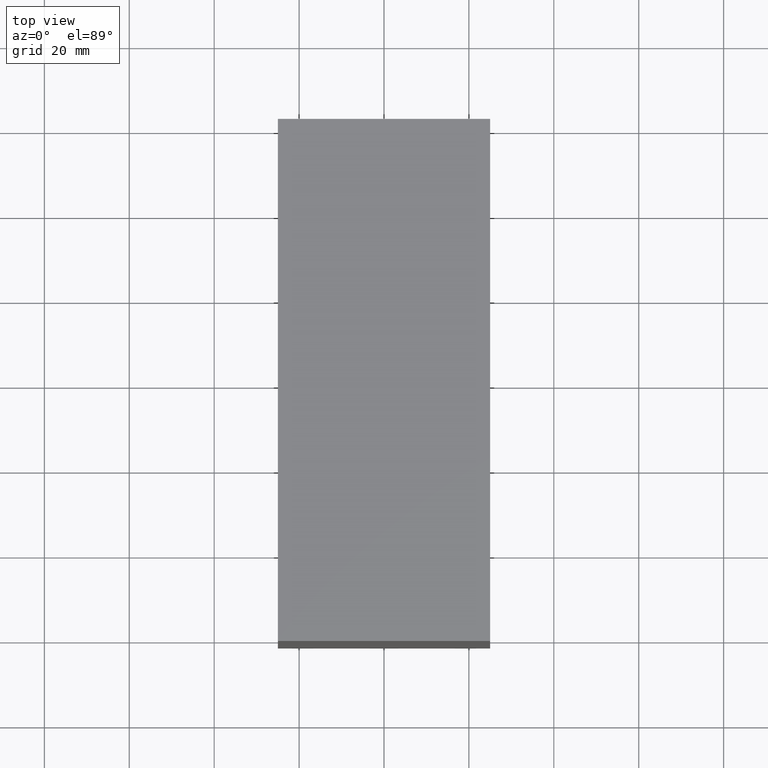
[diagram: clean part render]
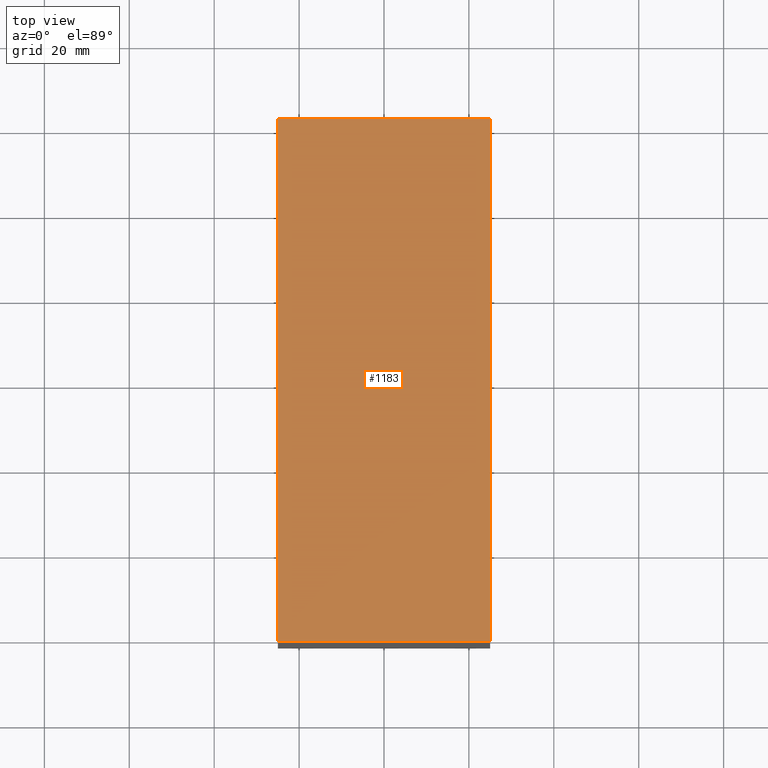
[diagram: same view with one face highlighted and labeled with its STEP entity id]
A machine part, top view. The second image highlights one B-rep face of the part: STEP entity #1183.
In plain terms, the highlighted planar face has unit normal (0, 0, -1).
Its self-contained STEP definition (entity closure, byte-faithful):
#28 = LINE ( 'NONE', #729, #694 ) ;
#43 = VERTEX_POINT ( 'NONE', #403 ) ;
#94 = DIRECTION ( 'NONE',  ( -1.000000000000000000, -0.0000000000000000000, -0.0000000000000000000 ) ) ;
#106 = ORIENTED_EDGE ( 'NONE', *, *, #215, .T. ) ;
#137 = LINE ( 'NONE', #566, #600 ) ;
#215 = EDGE_CURVE ( 'NONE', #1005, #867, #1128, .T. ) ;
#216 = PLANE ( 'NONE',  #244 ) ;
#226 = VECTOR ( 'NONE', #420, 1000.000000000000000 ) ;
#244 = AXIS2_PLACEMENT_3D ( 'NONE', #868, #422, #964 ) ;
#251 = FACE_OUTER_BOUND ( 'NONE', #561, .T. ) ;
#331 = ORIENTED_EDGE ( 'NONE', *, *, #967, .F. ) ;
#339 = CARTESIAN_POINT ( 'NONE',  ( -25.00000000000000000, -61.50000000000000000, 50.79499999999999500 ) ) ;
#366 = EDGE_CURVE ( 'NONE', #43, #1112, #28, .T. ) ;
#403 = CARTESIAN_POINT ( 'NONE',  ( 25.00000000000000000, 61.50000000000000000, 50.79499999999999500 ) ) ;
#420 = DIRECTION ( 'NONE',  ( -0.0000000000000000000, -1.000000000000000000, -0.0000000000000000000 ) ) ;
#422 = DIRECTION ( 'NONE',  ( 0.0000000000000000000, 0.0000000000000000000, -1.000000000000000000 ) ) ;
#444 = ORIENTED_EDGE ( 'NONE', *, *, #445, .T. ) ;
#445 = EDGE_CURVE ( 'NONE', #43, #1005, #137, .T. ) ;
#461 = CARTESIAN_POINT ( 'NONE',  ( -25.00000000000000000, 61.50000000000000000, 50.79499999999999500 ) ) ;
#561 = EDGE_LOOP ( 'NONE', ( #106, #331, #633, #444 ) ) ;
#566 = CARTESIAN_POINT ( 'NONE',  ( 25.00000000000000000, 61.50000000000000000, 50.79499999999999500 ) ) ;
#570 = CARTESIAN_POINT ( 'NONE',  ( 25.00000000000000000, -61.50000000000000000, 50.79499999999999500 ) ) ;
#600 = VECTOR ( 'NONE', #94, 1000.000000000000000 ) ;
#633 = ORIENTED_EDGE ( 'NONE', *, *, #366, .F. ) ;
#694 = VECTOR ( 'NONE', #919, 1000.000000000000000 ) ;
#729 = CARTESIAN_POINT ( 'NONE',  ( 25.00000000000000000, -61.50000000000000000, 50.79499999999999500 ) ) ;
#732 = CARTESIAN_POINT ( 'NONE',  ( -25.00000000000000000, -61.50000000000000000, 50.79499999999999500 ) ) ;
#765 = DIRECTION ( 'NONE',  ( -1.000000000000000000, -0.0000000000000000000, -0.0000000000000000000 ) ) ;
#867 = VERTEX_POINT ( 'NONE', #732 ) ;
#868 = CARTESIAN_POINT ( 'NONE',  ( 25.00000000000000000, -61.50000000000000000, 50.79499999999999500 ) ) ;
#919 = DIRECTION ( 'NONE',  ( -0.0000000000000000000, -1.000000000000000000, -0.0000000000000000000 ) ) ;
#933 = VECTOR ( 'NONE', #765, 1000.000000000000000 ) ;
#964 = DIRECTION ( 'NONE',  ( -1.000000000000000000, 0.0000000000000000000, -0.0000000000000000000 ) ) ;
#967 = EDGE_CURVE ( 'NONE', #1112, #867, #1165, .T. ) ;
#1005 = VERTEX_POINT ( 'NONE', #461 ) ;
#1112 = VERTEX_POINT ( 'NONE', #1120 ) ;
#1120 = CARTESIAN_POINT ( 'NONE',  ( 25.00000000000000000, -61.50000000000000000, 50.79499999999999500 ) ) ;
#1128 = LINE ( 'NONE', #339, #226 ) ;
#1165 = LINE ( 'NONE', #570, #933 ) ;
#1183 = ADVANCED_FACE ( 'NONE', ( #251 ), #216, .F. ) ;